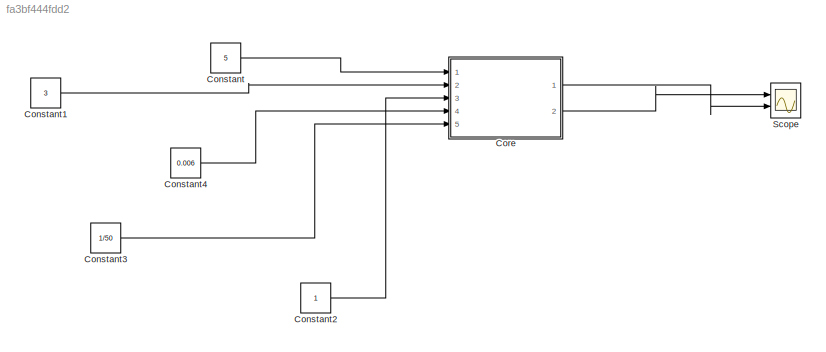
MODEL slx_fa3bf444fdd2
KIND model
CONFIG AbsTol = auto
CONFIG FixedStep = auto
CONFIG MaxStep = auto
CONFIG MinStep = auto
CONFIG RelTol = 1e-3
CONFIG SampleTimeConstraint = Unconstrained
CONFIG Solver = VariableStepAuto
CONFIG SolverMode = Auto
CONFIG SolverName = VariableStepAuto
CONFIG StartTime = 0.0
CONFIG StopTime = 10.0
BLOCK [Constant] Constant
  Value = 5
BLOCK [Constant] Constant1
  Value = 3
BLOCK [Constant] Constant2
BLOCK [Constant] Constant3
  Value = 1/50
BLOCK [Constant] Constant4
  Value = 0.006
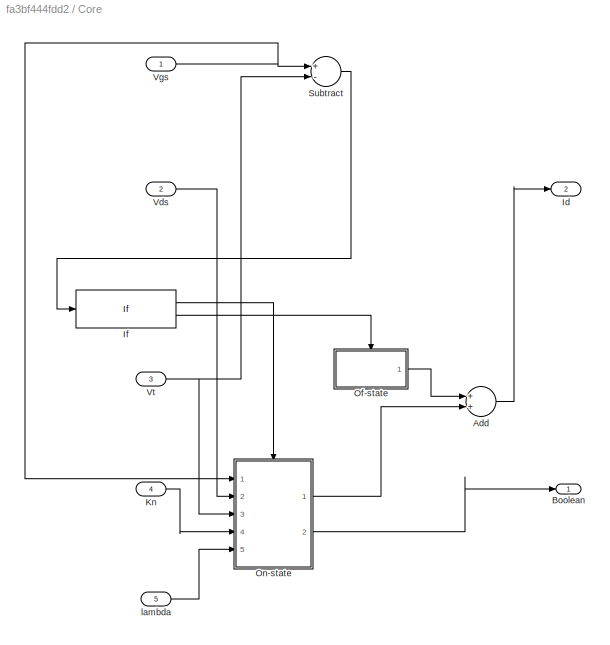
BLOCK [SubSystem] Core
  Ports = [5, 2]
  RequestExecContextInheritance = off
  Variant = off
BLOCK [Sum] Core/Add
  InputSameDT = off
  OutDataTypeStr = Inherit: Inherit via internal rule
  Ports = [2, 1]
  SaturateOnIntegerOverflow = off
BLOCK [Outport] Core/Boolean
  IconDisplay = Port number
BLOCK [Outport] Core/Id
  IconDisplay = Port number
  Port = 2
BLOCK [If] Core/If
  Ports = [1, 2]
BLOCK [Inport] Core/Kn
  IconDisplay = Port number
  Port = 4
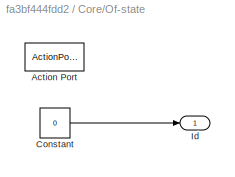
BLOCK [SubSystem] Core/Of-state
  Ports = [0, 1, 0, 0, 0, 0, 0, 1]
  RequestExecContextInheritance = off
  TreatAsAtomicUnit = on
  Variant = off
BLOCK [ActionPort] Core/Of-state/Action Port
  ActionType = else
BLOCK [Constant] Core/Of-state/Constant
  Value = 0
BLOCK [Outport] Core/Of-state/Id
  IconDisplay = Port number
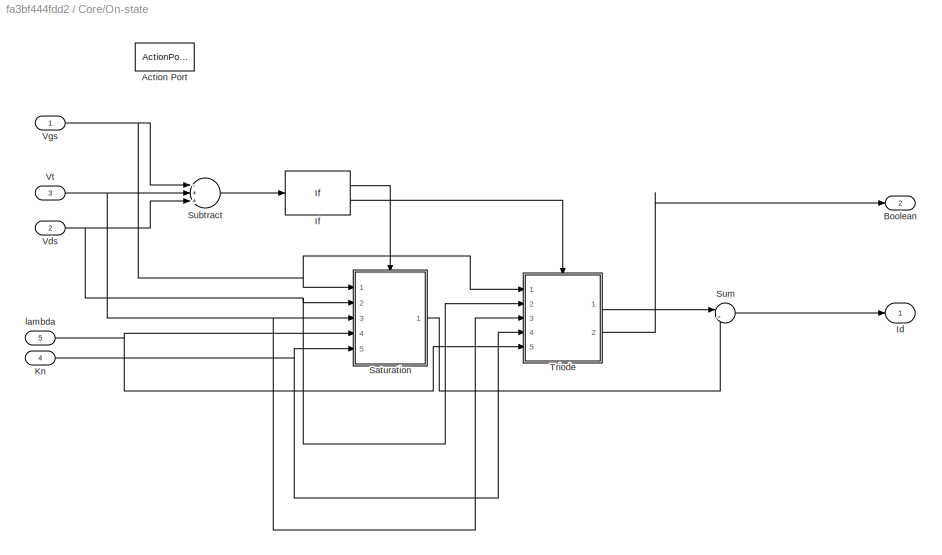
BLOCK [SubSystem] Core/On-state
  Ports = [5, 2, 0, 0, 0, 0, 0, 1]
  RequestExecContextInheritance = off
  TreatAsAtomicUnit = on
  Variant = off
BLOCK [ActionPort] Core/On-state/Action Port
  ActionType = then
BLOCK [Outport] Core/On-state/Boolean
  IconDisplay = Port number
  Port = 2
BLOCK [Outport] Core/On-state/Id
  IconDisplay = Port number
BLOCK [If] Core/On-state/If
  Ports = [1, 2]
BLOCK [Inport] Core/On-state/Kn
  IconDisplay = Port number
  Port = 4
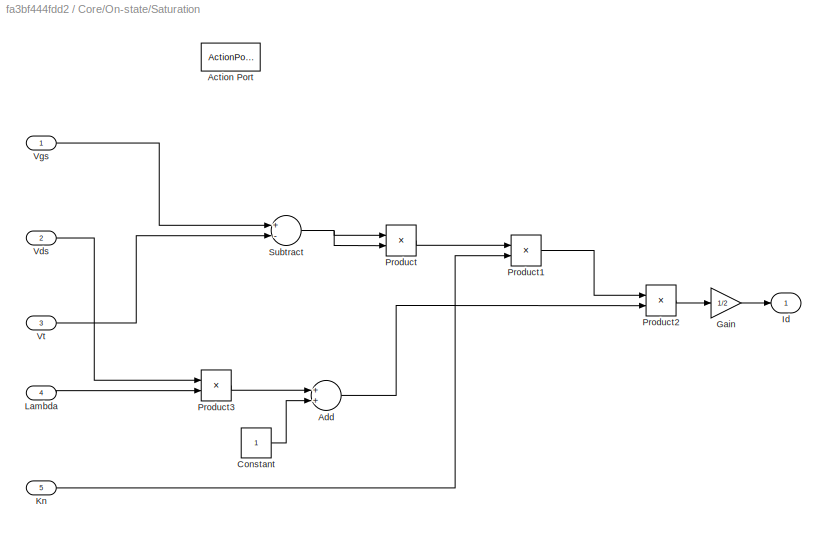
BLOCK [SubSystem] Core/On-state/Saturation
  Ports = [5, 1, 0, 0, 0, 0, 0, 1]
  RequestExecContextInheritance = off
  TreatAsAtomicUnit = on
  Variant = off
BLOCK [ActionPort] Core/On-state/Saturation/Action Port
  ActionType = then
BLOCK [Sum] Core/On-state/Saturation/Add
  InputSameDT = off
  OutDataTypeStr = Inherit: Inherit via internal rule
  Ports = [2, 1]
  SaturateOnIntegerOverflow = off
BLOCK [Constant] Core/On-state/Saturation/Constant
BLOCK [Gain] Core/On-state/Saturation/Gain
  Gain = 1/2
  OutDataTypeStr = Inherit: Inherit via internal rule
  ParamDataTypeStr = Inherit: Inherit via internal rule
  SaturateOnIntegerOverflow = off
BLOCK [Outport] Core/On-state/Saturation/Id
  IconDisplay = Port number
BLOCK [Inport] Core/On-state/Saturation/Kn
  IconDisplay = Port number
  Port = 5
BLOCK [Inport] Core/On-state/Saturation/Lambda
  IconDisplay = Port number
  Port = 4
BLOCK [Product] Core/On-state/Saturation/Product
  InputSameDT = off
  OutDataTypeStr = Inherit: Inherit via internal rule
  Ports = [2, 1]
  RndMeth = Floor
  SaturateOnIntegerOverflow = off
BLOCK [Product] Core/On-state/Saturation/Product1
  InputSameDT = off
  OutDataTypeStr = Inherit: Inherit via internal rule
  Ports = [2, 1]
  RndMeth = Floor
  SaturateOnIntegerOverflow = off
BLOCK [Product] Core/On-state/Saturation/Product2
  InputSameDT = off
  OutDataTypeStr = Inherit: Inherit via internal rule
  Ports = [2, 1]
  RndMeth = Floor
  SaturateOnIntegerOverflow = off
BLOCK [Product] Core/On-state/Saturation/Product3
  InputSameDT = off
  OutDataTypeStr = Inherit: Inherit via internal rule
  Ports = [2, 1]
  RndMeth = Floor
  SaturateOnIntegerOverflow = off
BLOCK [Sum] Core/On-state/Saturation/Subtract
  InputSameDT = off
  Inputs = +-
  OutDataTypeStr = Inherit: Inherit via internal rule
  Ports = [2, 1]
  SaturateOnIntegerOverflow = off
BLOCK [Inport] Core/On-state/Saturation/Vds
  IconDisplay = Port number
  Port = 2
BLOCK [Inport] Core/On-state/Saturation/Vgs
  IconDisplay = Port number
BLOCK [Inport] Core/On-state/Saturation/Vt 
  IconDisplay = Port number
  Port = 3
BLOCK [Sum] Core/On-state/Subtract
  InputSameDT = off
  Inputs = -++
  OutDataTypeStr = Inherit: Inherit via internal rule
  Ports = [3, 1]
  SaturateOnIntegerOverflow = off
BLOCK [Sum] Core/On-state/Sum
  IconShape = round
  InputSameDT = off
  Inputs = |++
  OutDataTypeStr = Inherit: Inherit via internal rule
  Ports = [2, 1]
  SaturateOnIntegerOverflow = off
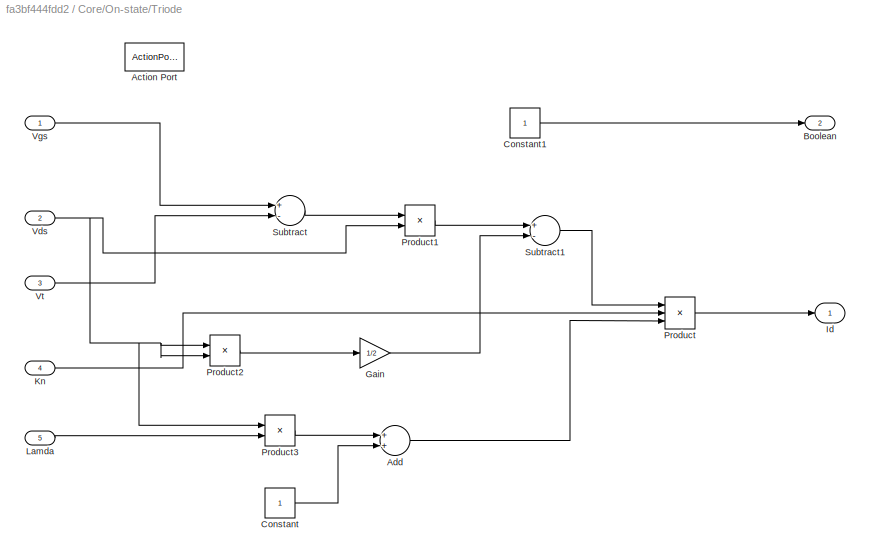
BLOCK [SubSystem] Core/On-state/Triode
  Ports = [5, 2, 0, 0, 0, 0, 0, 1]
  RequestExecContextInheritance = off
  TreatAsAtomicUnit = on
  Variant = off
BLOCK [ActionPort] Core/On-state/Triode/Action Port
  ActionType = else
BLOCK [Sum] Core/On-state/Triode/Add
  InputSameDT = off
  OutDataTypeStr = Inherit: Inherit via internal rule
  Ports = [2, 1]
  SaturateOnIntegerOverflow = off
BLOCK [Outport] Core/On-state/Triode/Boolean
  IconDisplay = Port number
  Port = 2
BLOCK [Constant] Core/On-state/Triode/Constant
BLOCK [Constant] Core/On-state/Triode/Constant1
BLOCK [Gain] Core/On-state/Triode/Gain
  Gain = 1/2
  OutDataTypeStr = Inherit: Inherit via internal rule
  ParamDataTypeStr = Inherit: Inherit via internal rule
  SaturateOnIntegerOverflow = off
BLOCK [Outport] Core/On-state/Triode/Id
  IconDisplay = Port number
BLOCK [Inport] Core/On-state/Triode/Kn
  IconDisplay = Port number
  Port = 4
BLOCK [Inport] Core/On-state/Triode/Lamda
  IconDisplay = Port number
  Port = 5
BLOCK [Product] Core/On-state/Triode/Product
  InputSameDT = off
  Inputs = 3
  OutDataTypeStr = Inherit: Inherit via internal rule
  Ports = [3, 1]
  RndMeth = Floor
  SaturateOnIntegerOverflow = off
BLOCK [Product] Core/On-state/Triode/Product1
  InputSameDT = off
  OutDataTypeStr = Inherit: Inherit via internal rule
  Ports = [2, 1]
  RndMeth = Floor
  SaturateOnIntegerOverflow = off
BLOCK [Product] Core/On-state/Triode/Product2
  InputSameDT = off
  OutDataTypeStr = Inherit: Inherit via internal rule
  Ports = [2, 1]
  RndMeth = Floor
  SaturateOnIntegerOverflow = off
BLOCK [Product] Core/On-state/Triode/Product3
  InputSameDT = off
  OutDataTypeStr = Inherit: Inherit via internal rule
  Ports = [2, 1]
  RndMeth = Floor
  SaturateOnIntegerOverflow = off
BLOCK [Sum] Core/On-state/Triode/Subtract
  InputSameDT = off
  Inputs = +-
  OutDataTypeStr = Inherit: Inherit via internal rule
  Ports = [2, 1]
  SaturateOnIntegerOverflow = off
BLOCK [Sum] Core/On-state/Triode/Subtract1
  InputSameDT = off
  Inputs = +-
  OutDataTypeStr = Inherit: Inherit via internal rule
  Ports = [2, 1]
  SaturateOnIntegerOverflow = off
BLOCK [Inport] Core/On-state/Triode/Vds
  IconDisplay = Port number
  Port = 2
BLOCK [Inport] Core/On-state/Triode/Vgs
  IconDisplay = Port number
BLOCK [Inport] Core/On-state/Triode/Vt
  IconDisplay = Port number
  Port = 3
BLOCK [Inport] Core/On-state/Vds
  IconDisplay = Port number
  Port = 2
BLOCK [Inport] Core/On-state/Vgs
  IconDisplay = Port number
BLOCK [Inport] Core/On-state/Vt
  IconDisplay = Port number
  Port = 3
BLOCK [Inport] Core/On-state/lambda
  IconDisplay = Port number
  Port = 5
BLOCK [Sum] Core/Subtract
  InputSameDT = off
  Inputs = +-
  OutDataTypeStr = Inherit: Inherit via internal rule
  Ports = [2, 1]
  SaturateOnIntegerOverflow = off
BLOCK [Inport] Core/Vds
  IconDisplay = Port number
  Port = 2
BLOCK [Inport] Core/Vgs
  IconDisplay = Port number
BLOCK [Inport] Core/Vt
  IconDisplay = Port number
  Port = 3
BLOCK [Inport] Core/lambda
  IconDisplay = Port number
  Port = 5
BLOCK [Scope] Scope
  NumInputPorts = 2
  Ports = [2]
  ScopeSpecificationString = Simulink.scopes.TimeScopeBlockCfg('CurrentConfiguration', extmgr.ConfigurationSet(extmgr.Configuration('Core','General UI',true),extmgr.Configuration('Core','Source UI',true),extmgr.Configuration('Sources','WiredSimulink',true),extmgr.Configuration('Visuals','Time Domain',true,'SerializedDisplays',{struct('MinYLimReal','0.0377','MaxYLimReal','0.0577','YLabelReal','','MinYLimMag','0.0377','MaxYLimM...<+1955ch>
LINE Constant1:1 -> Core:2
LINE Constant2:1 -> Core:3
LINE Constant3:1 -> Core:5
LINE Constant4:1 -> Core:4
LINE Constant:1 -> Core:1
LINE Core/Add:1 -> Core/Id:1
LINE Core/If:1 -> Core/On-state:ifaction
LINE Core/If:2 -> Core/Of-state:ifaction
LINE Core/Kn:1 -> Core/On-state:4
LINE Core/Of-state/Constant:1 -> Core/Of-state/Id:1
LINE Core/Of-state:1 -> Core/Add:1
LINE Core/On-state/If:1 -> Core/On-state/Saturation:ifaction
LINE Core/On-state/If:2 -> Core/On-state/Triode:ifaction
NET Core/On-state/Kn:1 -> Core/On-state/Saturation:5, Core/On-state/Triode:4
LINE Core/On-state/Saturation/Add:1 -> Core/On-state/Saturation/Product2:2
LINE Core/On-state/Saturation/Constant:1 -> Core/On-state/Saturation/Add:2
LINE Core/On-state/Saturation/Gain:1 -> Core/On-state/Saturation/Id:1
LINE Core/On-state/Saturation/Kn:1 -> Core/On-state/Saturation/Product1:2
LINE Core/On-state/Saturation/Lambda:1 -> Core/On-state/Saturation/Product3:2
LINE Core/On-state/Saturation/Product1:1 -> Core/On-state/Saturation/Product2:1
LINE Core/On-state/Saturation/Product2:1 -> Core/On-state/Saturation/Gain:1
LINE Core/On-state/Saturation/Product3:1 -> Core/On-state/Saturation/Add:1
LINE Core/On-state/Saturation/Product:1 -> Core/On-state/Saturation/Product1:1
NET Core/On-state/Saturation/Subtract:1 -> Core/On-state/Saturation/Product:1, Core/On-state/Saturation/Product:2
LINE Core/On-state/Saturation/Vds:1 -> Core/On-state/Saturation/Product3:1
LINE Core/On-state/Saturation/Vgs:1 -> Core/On-state/Saturation/Subtract:1
LINE Core/On-state/Saturation/Vt :1 -> Core/On-state/Saturation/Subtract:2
LINE Core/On-state/Saturation:1 -> Core/On-state/Sum:2
LINE Core/On-state/Subtract:1 -> Core/On-state/If:1
LINE Core/On-state/Sum:1 -> Core/On-state/Id:1
LINE Core/On-state/Triode/Add:1 -> Core/On-state/Triode/Product:3
LINE Core/On-state/Triode/Constant1:1 -> Core/On-state/Triode/Boolean:1
LINE Core/On-state/Triode/Constant:1 -> Core/On-state/Triode/Add:2
LINE Core/On-state/Triode/Gain:1 -> Core/On-state/Triode/Subtract1:2
LINE Core/On-state/Triode/Kn:1 -> Core/On-state/Triode/Product:2
LINE Core/On-state/Triode/Lamda:1 -> Core/On-state/Triode/Product3:2
LINE Core/On-state/Triode/Product1:1 -> Core/On-state/Triode/Subtract1:1
LINE Core/On-state/Triode/Product2:1 -> Core/On-state/Triode/Gain:1
LINE Core/On-state/Triode/Product3:1 -> Core/On-state/Triode/Add:1
LINE Core/On-state/Triode/Product:1 -> Core/On-state/Triode/Id:1
LINE Core/On-state/Triode/Subtract1:1 -> Core/On-state/Triode/Product:1
LINE Core/On-state/Triode/Subtract:1 -> Core/On-state/Triode/Product1:1
NET Core/On-state/Triode/Vds:1 -> Core/On-state/Triode/Product1:2, Core/On-state/Triode/Product2:1, Core/On-state/Triode/Product2:2, Core/On-state/Triode/Product3:1
LINE Core/On-state/Triode/Vgs:1 -> Core/On-state/Triode/Subtract:1
LINE Core/On-state/Triode/Vt:1 -> Core/On-state/Triode/Subtract:2
LINE Core/On-state/Triode:1 -> Core/On-state/Sum:1
LINE Core/On-state/Triode:2 -> Core/On-state/Boolean:1
NET Core/On-state/Vds:1 -> Core/On-state/Saturation:2, Core/On-state/Subtract:3, Core/On-state/Triode:2
NET Core/On-state/Vgs:1 -> Core/On-state/Saturation:1, Core/On-state/Subtract:1, Core/On-state/Triode:1
NET Core/On-state/Vt:1 -> Core/On-state/Saturation:3, Core/On-state/Subtract:2, Core/On-state/Triode:3
NET Core/On-state/lambda:1 -> Core/On-state/Saturation:4, Core/On-state/Triode:5
LINE Core/On-state:1 -> Core/Add:2
LINE Core/On-state:2 -> Core/Boolean:1
LINE Core/Subtract:1 -> Core/If:1
LINE Core/Vds:1 -> Core/On-state:2
NET Core/Vgs:1 -> Core/On-state:1, Core/Subtract:1
NET Core/Vt:1 -> Core/On-state:3, Core/Subtract:2
LINE Core/lambda:1 -> Core/On-state:5
LINE Core:1 -> Scope:2
LINE Core:2 -> Scope:1
note: NET lines group one-source signal fan-out (src -> all destinations, sorted); 1:1 wires keep LINE
